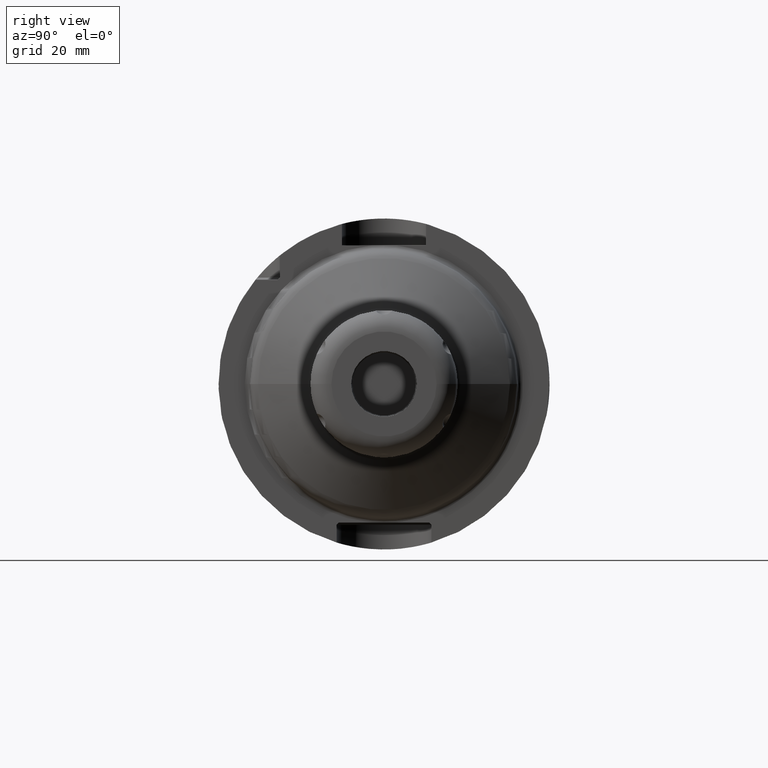
[diagram: clean part render]
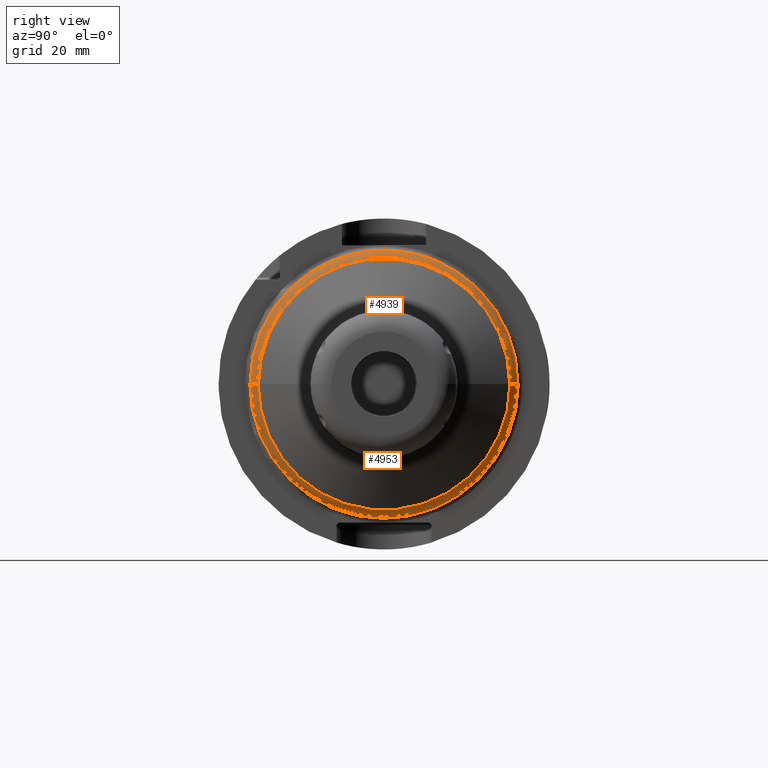
[diagram: same view with one multi-face feature highlighted, each face labeled with its STEP entity id]
A machine part, right view. The highlighted faces form ONE feature: a constant-radius fillet chain: 2 tangent blend faces with common blend radius 3 mm. The faces share edges in the B-rep.
Their STEP definitions:
[1] entity #4953 (Torus):
#1588=CARTESIAN_POINT('',(2.748460570079E1,-2.25E1,-3.218467159449E-12));
#1589=DIRECTION('',(0.E0,-1.430426957438E-13,1.E0));
#1590=DIRECTION('',(0.E0,-1.E0,-1.430426957438E-13));
#1591=AXIS2_PLACEMENT_3D('',#1588,#1589,#1590);
#1593=CARTESIAN_POINT('',(2.748460570079E1,2.25E1,3.220188005137E-12));
#1594=DIRECTION('',(0.E0,1.431190235768E-13,-1.E0));
#1595=DIRECTION('',(0.E0,1.E0,1.431190235768E-13));
#1596=AXIS2_PLACEMENT_3D('',#1593,#1594,#1595);
#1598=CARTESIAN_POINT('',(2.748460570079E1,0.E0,0.E0));
#1599=DIRECTION('',(-1.E0,0.E0,0.E0));
#1600=DIRECTION('',(0.E0,1.E0,0.E0));
#1601=AXIS2_PLACEMENT_3D('',#1598,#1599,#1600);
#1611=CARTESIAN_POINT('',(3.009629421695E1,0.E0,0.E0));
#1612=DIRECTION('',(-1.E0,0.E0,0.E0));
#1613=DIRECTION('',(0.E0,1.E0,0.E0));
#1614=AXIS2_PLACEMENT_3D('',#1611,#1612,#1613);
#3267=CARTESIAN_POINT('',(2.748460570079E1,2.55E1,1.444712418900E-14));
#3268=CARTESIAN_POINT('',(2.748460570079E1,-2.55E1,-1.756997352683E-14));
#3269=VERTEX_POINT('',#3267);
#3270=VERTEX_POINT('',#3268);
#3271=CARTESIAN_POINT('',(3.009629421695E1,2.397617177E1,0.E0));
#3272=CARTESIAN_POINT('',(3.009629421695E1,-2.397617177E1,0.E0));
#3273=VERTEX_POINT('',#3271);
#3274=VERTEX_POINT('',#3272);
#4940=CARTESIAN_POINT('',(2.748460570079E1,0.E0,0.E0));
#4941=DIRECTION('',(1.E0,0.E0,0.E0));
#4942=DIRECTION('',(0.E0,9.999957977319E-1,2.899054762654E-3));
#4943=AXIS2_PLACEMENT_3D('',#4940,#4941,#4942);
#4944=TOROIDAL_SURFACE('',#4943,2.25E1,3.E0);
#4946=ORIENTED_EDGE('',*,*,#4945,.T.);
#4947=ORIENTED_EDGE('',*,*,#4935,.T.);
#4949=ORIENTED_EDGE('',*,*,#4948,.F.);
#4950=ORIENTED_EDGE('',*,*,#4931,.F.);
#4951=EDGE_LOOP('',(#4946,#4947,#4949,#4950));
#4952=FACE_OUTER_BOUND('',#4951,.F.);
#4953=ADVANCED_FACE('',(#4952),#4944,.T.);
#1592=CIRCLE('',#1591,3.E0);
#1597=CIRCLE('',#1596,3.E0);
#1602=CIRCLE('',#1601,2.55E1);
#1615=CIRCLE('',#1614,2.397617177E1);
#4931=EDGE_CURVE('',#3269,#3273,#1597,.T.);
#4935=EDGE_CURVE('',#3270,#3274,#1592,.T.);
#4945=EDGE_CURVE('',#3269,#3270,#1602,.T.);
#4948=EDGE_CURVE('',#3273,#3274,#1615,.T.);
[2] entity #4939 (Torus):
#1573=CARTESIAN_POINT('',(2.748460570079E1,0.E0,0.E0));
#1574=DIRECTION('',(-1.E0,0.E0,0.E0));
#1575=DIRECTION('',(0.E0,-1.E0,0.E0));
#1576=AXIS2_PLACEMENT_3D('',#1573,#1574,#1575);
#1588=CARTESIAN_POINT('',(2.748460570079E1,-2.25E1,-3.218467159449E-12));
#1589=DIRECTION('',(0.E0,-1.430426957438E-13,1.E0));
#1590=DIRECTION('',(0.E0,-1.E0,-1.430426957438E-13));
#1591=AXIS2_PLACEMENT_3D('',#1588,#1589,#1590);
#1593=CARTESIAN_POINT('',(2.748460570079E1,2.25E1,3.220188005137E-12));
#1594=DIRECTION('',(0.E0,1.431190235768E-13,-1.E0));
#1595=DIRECTION('',(0.E0,1.E0,1.431190235768E-13));
#1596=AXIS2_PLACEMENT_3D('',#1593,#1594,#1595);
#1629=CARTESIAN_POINT('',(3.009629421695E1,0.E0,0.E0));
#1630=DIRECTION('',(-1.E0,0.E0,0.E0));
#1631=DIRECTION('',(0.E0,-1.E0,0.E0));
#1632=AXIS2_PLACEMENT_3D('',#1629,#1630,#1631);
#3267=CARTESIAN_POINT('',(2.748460570079E1,2.55E1,1.444712418900E-14));
#3268=CARTESIAN_POINT('',(2.748460570079E1,-2.55E1,-1.756997352683E-14));
#3269=VERTEX_POINT('',#3267);
#3270=VERTEX_POINT('',#3268);
#3271=CARTESIAN_POINT('',(3.009629421695E1,2.397617177E1,0.E0));
#3272=CARTESIAN_POINT('',(3.009629421695E1,-2.397617177E1,0.E0));
#3273=VERTEX_POINT('',#3271);
#3274=VERTEX_POINT('',#3272);
#4925=CARTESIAN_POINT('',(2.748460570079E1,0.E0,0.E0));
#4926=DIRECTION('',(1.E0,0.E0,0.E0));
#4927=DIRECTION('',(0.E0,-9.999957977319E-1,-2.899054762654E-3));
#4928=AXIS2_PLACEMENT_3D('',#4925,#4926,#4927);
#4929=TOROIDAL_SURFACE('',#4928,2.25E1,3.E0);
#4930=ORIENTED_EDGE('',*,*,#4914,.T.);
#4932=ORIENTED_EDGE('',*,*,#4931,.T.);
#4934=ORIENTED_EDGE('',*,*,#4933,.F.);
#4936=ORIENTED_EDGE('',*,*,#4935,.F.);
#4937=EDGE_LOOP('',(#4930,#4932,#4934,#4936));
#4938=FACE_OUTER_BOUND('',#4937,.F.);
#4939=ADVANCED_FACE('',(#4938),#4929,.T.);
#1577=CIRCLE('',#1576,2.55E1);
#1592=CIRCLE('',#1591,3.E0);
#1597=CIRCLE('',#1596,3.E0);
#1633=CIRCLE('',#1632,2.397617177E1);
#4914=EDGE_CURVE('',#3270,#3269,#1577,.T.);
#4931=EDGE_CURVE('',#3269,#3273,#1597,.T.);
#4933=EDGE_CURVE('',#3274,#3273,#1633,.T.);
#4935=EDGE_CURVE('',#3270,#3274,#1592,.T.);